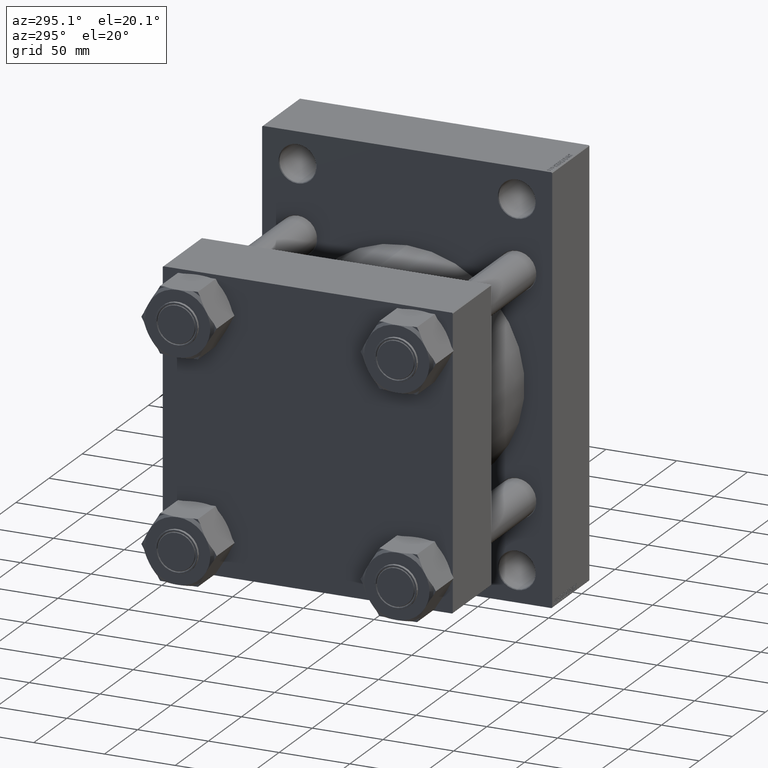
[diagram: clean part render]
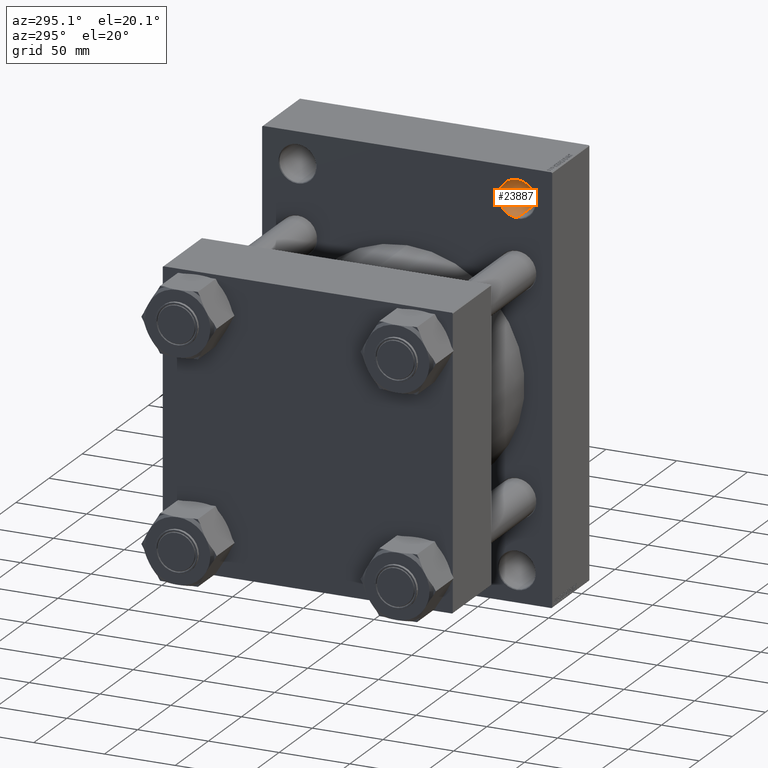
[diagram: same view with one face highlighted and labeled with its STEP entity id]
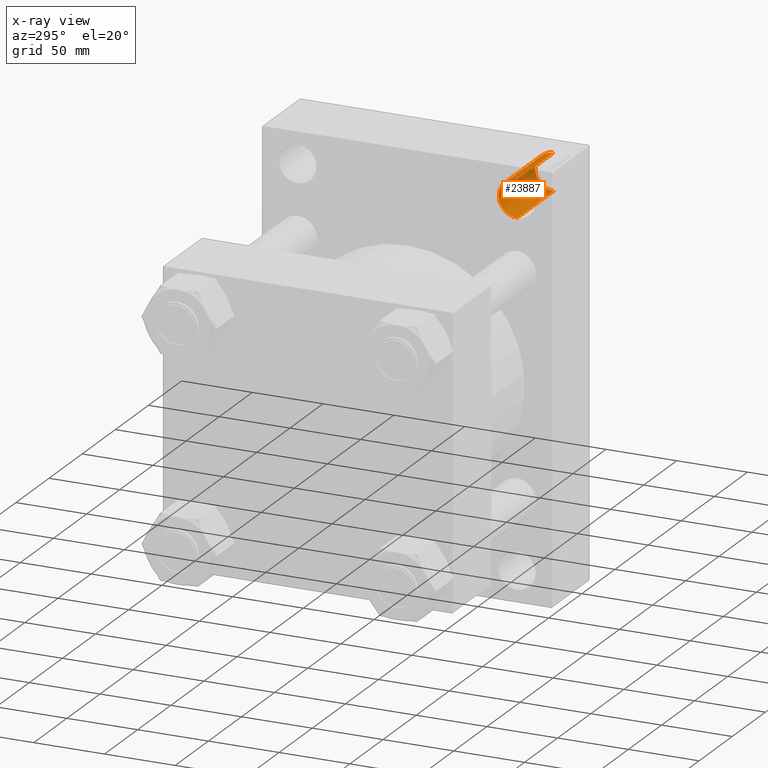
[diagram: x-ray of the same camera — body ghosted, the highlighted face saturated]
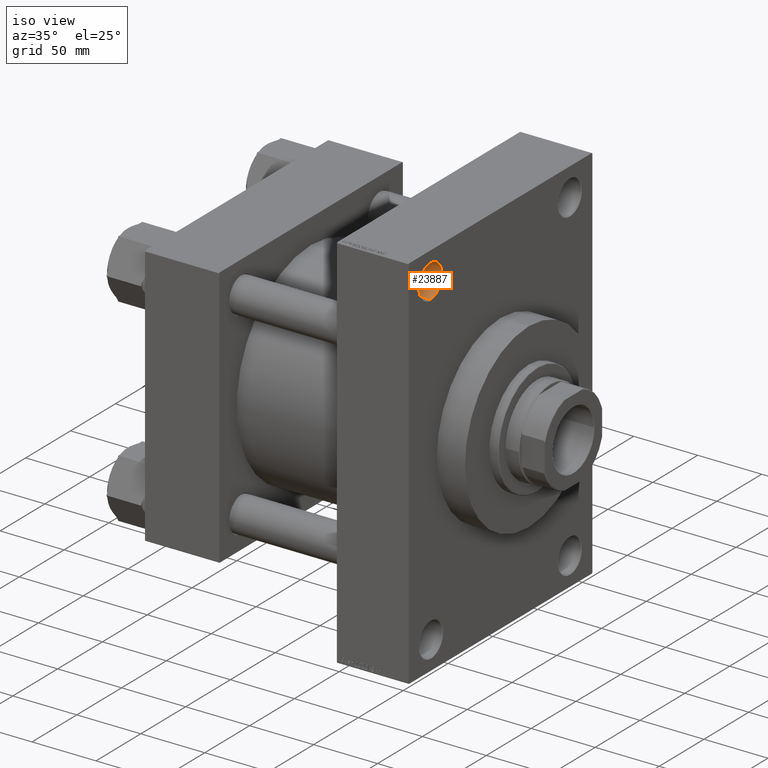
[diagram: same view with one face highlighted and labeled with its STEP entity id]
A machine part, auxiliary view. The second image highlights one B-rep face of the part: STEP entity #23887.
The next image is the same camera in x-ray: the body ghosted, the highlighted face saturated — about 19% of this face is hidden behind the body in this view.
A second angle (iso view) of the same face is appended — the face is thin or edge-on in the first view.
In plain terms, the highlighted cylindrical surface (edge-blend (fillet) strip) has radius 13 mm, axis along (1, 0, 0).
Its self-contained STEP definition (entity closure, byte-faithful):
#86 = EDGE_LOOP ( 'NONE', ( #25612, #34958, #17363, #2972 ) ) ;
#1612 = DIRECTION ( 'NONE',  ( 0.000000000000000000, 0.000000000000000000, 1.000000000000000000 ) ) ;
#2445 = CARTESIAN_POINT ( 'NONE',  ( 150.4999999999999432, -77.49999999999997158, 139.5000000000000284 ) ) ;
#2535 = CIRCLE ( 'NONE', #7138, 13.00000000000001066 ) ;
#2773 = VECTOR ( 'NONE', #44785, 1000.000000000000000 ) ;
#2972 = ORIENTED_EDGE ( 'NONE', *, *, #28325, .T. ) ;
#4539 = AXIS2_PLACEMENT_3D ( 'NONE', #5066, #46055, #42659 ) ;
#4757 = DIRECTION ( 'NONE',  ( 1.000000000000000000, 0.000000000000000000, 0.000000000000000000 ) ) ;
#4973 = FACE_OUTER_BOUND ( 'NONE', #86, .T. ) ;
#5066 = CARTESIAN_POINT ( 'NONE',  ( 150.4999999999999432, -77.49999999999997158, 126.5000000000000284 ) ) ;
#7138 = AXIS2_PLACEMENT_3D ( 'NONE', #41636, #4757, #1612 ) ;
#8344 = EDGE_CURVE ( 'NONE', #24141, #43516, #40756, .T. ) ;
#8354 = CYLINDRICAL_SURFACE ( 'NONE', #29648, 12.99999999999999822 ) ;
#8401 = CARTESIAN_POINT ( 'NONE',  ( 205.5000000000000853, -77.49999999999997158, 113.5000000000000284 ) ) ;
#11287 = CARTESIAN_POINT ( 'NONE',  ( 113.2304473782994876, -77.49999999999997158, 139.5000000000000284 ) ) ;
#11748 = DIRECTION ( 'NONE',  ( 1.000000000000000000, -0.000000000000000000, -0.000000000000000000 ) ) ;
#17363 = ORIENTED_EDGE ( 'NONE', *, *, #20694, .T. ) ;
#19757 = DIRECTION ( 'NONE',  ( 1.000000000000000000, -0.000000000000000000, -0.000000000000000000 ) ) ;
#20694 = EDGE_CURVE ( 'NONE', #43516, #22697, #33769, .T. ) ;
#22392 = VERTEX_POINT ( 'NONE', #39308 ) ;
#22697 = VERTEX_POINT ( 'NONE', #8401 ) ;
#23048 = CARTESIAN_POINT ( 'NONE',  ( 113.2304473782994876, -77.49999999999997158, 126.5000000000000284 ) ) ;
#23270 = VECTOR ( 'NONE', #19757, 1000.000000000000000 ) ;
#23887 = ADVANCED_FACE ( 'NONE', ( #4973 ), #8354, .F. ) ;
#24141 = VERTEX_POINT ( 'NONE', #2445 ) ;
#25612 = ORIENTED_EDGE ( 'NONE', *, *, #39032, .F. ) ;
#26445 = DIRECTION ( 'NONE',  ( 0.000000000000000000, 0.000000000000000000, -1.000000000000000000 ) ) ;
#28325 = EDGE_CURVE ( 'NONE', #22697, #22392, #2535, .T. ) ;
#29648 = AXIS2_PLACEMENT_3D ( 'NONE', #23048, #11748, #26445 ) ;
#30862 = CARTESIAN_POINT ( 'NONE',  ( 150.4999999999999432, -77.49999999999997158, 113.5000000000000284 ) ) ;
#33769 = LINE ( 'NONE', #38342, #23270 ) ;
#34958 = ORIENTED_EDGE ( 'NONE', *, *, #8344, .T. ) ;
#38342 = CARTESIAN_POINT ( 'NONE',  ( 113.2304473782994876, -77.49999999999997158, 113.5000000000000284 ) ) ;
#39032 = EDGE_CURVE ( 'NONE', #24141, #22392, #40459, .T. ) ;
#39308 = CARTESIAN_POINT ( 'NONE',  ( 205.5000000000000853, -77.49999999999997158, 139.5000000000000284 ) ) ;
#40459 = LINE ( 'NONE', #11287, #2773 ) ;
#40756 = CIRCLE ( 'NONE', #4539, 13.00000000000001066 ) ;
#41636 = CARTESIAN_POINT ( 'NONE',  ( 205.5000000000000853, -77.49999999999997158, 126.5000000000000284 ) ) ;
#42659 = DIRECTION ( 'NONE',  ( 0.000000000000000000, 0.000000000000000000, 1.000000000000000000 ) ) ;
#43516 = VERTEX_POINT ( 'NONE', #30862 ) ;
#44785 = DIRECTION ( 'NONE',  ( 1.000000000000000000, -0.000000000000000000, -0.000000000000000000 ) ) ;
#46055 = DIRECTION ( 'NONE',  ( -1.000000000000000000, -0.000000000000000000, -0.000000000000000000 ) ) ;